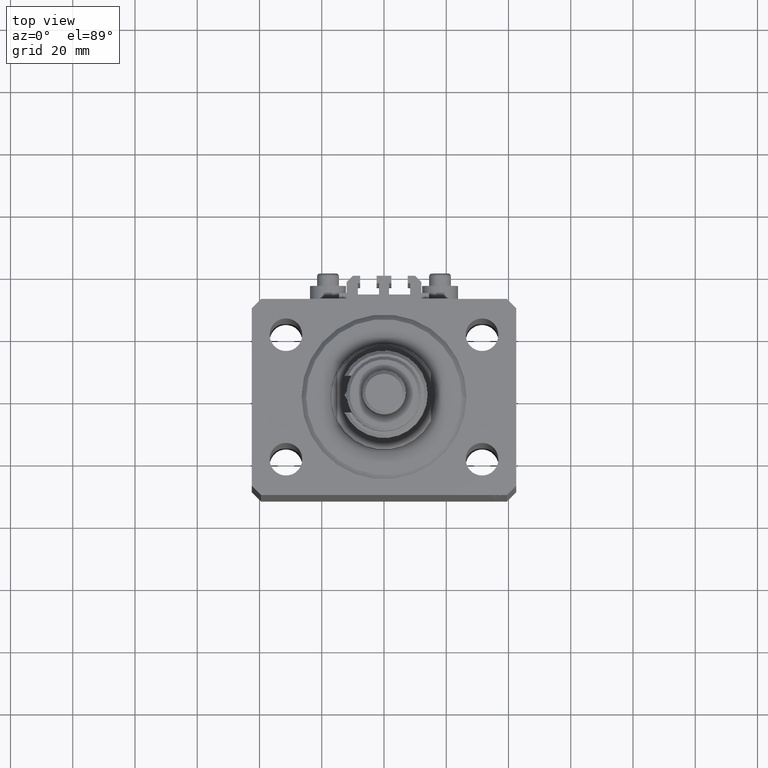
[diagram: clean part render]
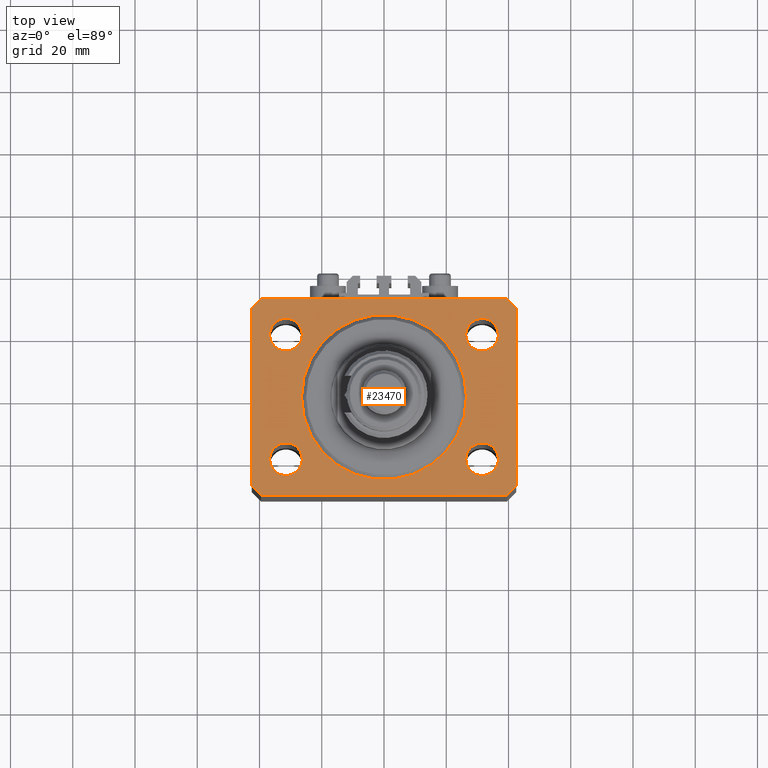
[diagram: same view with one face highlighted and labeled with its STEP entity id]
A machine part, top view. The second image highlights one B-rep face of the part: STEP entity #23470.
In plain terms, the highlighted planar face has unit normal (0, 0, 1).
Its self-contained STEP definition (entity closure, byte-faithful):
#446 = DIRECTION ( 'NONE',  ( 1.000000000000000000, 0.000000000000000000, -0.000000000000000000 ) ) ;
#685 = CARTESIAN_POINT ( 'NONE',  ( -39.50000000000000711, 31.50000000000000000, 0.000000000000000000 ) ) ;
#851 = EDGE_CURVE ( 'NONE', #24171, #5303, #35388, .T. ) ;
#905 = DIRECTION ( 'NONE',  ( 0.000000000000000000, 0.000000000000000000, 1.000000000000000000 ) ) ;
#1351 = DIRECTION ( 'NONE',  ( 0.000000000000000000, 0.000000000000000000, 1.000000000000000000 ) ) ;
#1599 = DIRECTION ( 'NONE',  ( 1.000000000000000000, 0.000000000000000000, 0.000000000000000000 ) ) ;
#2837 = ORIENTED_EDGE ( 'NONE', *, *, #11412, .F. ) ;
#3210 = VECTOR ( 'NONE', #23293, 1000.000000000000000 ) ;
#3241 = VERTEX_POINT ( 'NONE', #6510 ) ;
#3363 = VECTOR ( 'NONE', #16165, 1000.000000000000000 ) ;
#3405 = CARTESIAN_POINT ( 'NONE',  ( 42.50000000000000711, -28.50000000000000355, 0.000000000000000000 ) ) ;
#3412 = CARTESIAN_POINT ( 'NONE',  ( 42.50000000000051870, 28.49999999999995381, 0.000000000000000000 ) ) ;
#3523 = FACE_BOUND ( 'NONE', #23110, .T. ) ;
#3918 = ORIENTED_EDGE ( 'NONE', *, *, #24347, .F. ) ;
#4094 = DIRECTION ( 'NONE',  ( 1.000000000000000000, 0.000000000000000000, 0.000000000000000000 ) ) ;
#4255 = FACE_OUTER_BOUND ( 'NONE', #36804, .T. ) ;
#4389 = ORIENTED_EDGE ( 'NONE', *, *, #24379, .F. ) ;
#4404 = CARTESIAN_POINT ( 'NONE',  ( -39.50000000000000711, -31.50000000000000000, 0.000000000000000000 ) ) ;
#4546 = ORIENTED_EDGE ( 'NONE', *, *, #8628, .T. ) ;
#4745 = CIRCLE ( 'NONE', #12031, 5.250000000000000888 ) ;
#5132 = DIRECTION ( 'NONE',  ( 1.000000000000000000, 0.000000000000000000, 0.000000000000000000 ) ) ;
#5303 = VERTEX_POINT ( 'NONE', #45616 ) ;
#5593 = DIRECTION ( 'NONE',  ( 0.7071067811865471286, -0.7071067811865479058, 0.000000000000000000 ) ) ;
#6475 = CARTESIAN_POINT ( 'NONE',  ( -36.74999999999999289, -20.00000000000000355, 0.000000000000000000 ) ) ;
#6510 = CARTESIAN_POINT ( 'NONE',  ( -39.50000000000000711, -31.50000000000000000, 0.000000000000000000 ) ) ;
#6849 = CARTESIAN_POINT ( 'NONE',  ( 31.50000000000000000, 19.99999999999999289, 0.000000000000000000 ) ) ;
#7069 = CARTESIAN_POINT ( 'NONE',  ( 39.50000000000056843, 31.50000000000000000, 0.000000000000000000 ) ) ;
#7414 = EDGE_CURVE ( 'NONE', #13220, #16782, #17744, .T. ) ;
#7718 = CARTESIAN_POINT ( 'NONE',  ( 26.24999999999999645, -20.00000000000000355, 0.000000000000000000 ) ) ;
#7723 = VECTOR ( 'NONE', #22417, 1000.000000000000000 ) ;
#8003 = DIRECTION ( 'NONE',  ( 0.7071067811865483499, 0.7071067811865466846, 0.000000000000000000 ) ) ;
#8080 = FACE_BOUND ( 'NONE', #38780, .T. ) ;
#8186 = ORIENTED_EDGE ( 'NONE', *, *, #851, .F. ) ;
#8628 = EDGE_CURVE ( 'NONE', #33279, #13220, #15913, .T. ) ;
#8708 = CARTESIAN_POINT ( 'NONE',  ( -31.49999999999999289, -20.00000000000000355, 0.000000000000000000 ) ) ;
#8817 = CIRCLE ( 'NONE', #16936, 5.249999999999997335 ) ;
#8857 = DIRECTION ( 'NONE',  ( 1.000000000000000000, 0.000000000000000000, 0.000000000000000000 ) ) ;
#8968 = CIRCLE ( 'NONE', #33269, 5.250000000000000888 ) ;
#9214 = DIRECTION ( 'NONE',  ( 1.000000000000000000, 0.000000000000000000, 0.000000000000000000 ) ) ;
#9953 = ORIENTED_EDGE ( 'NONE', *, *, #36379, .T. ) ;
#9988 = CARTESIAN_POINT ( 'NONE',  ( -31.50000000000000000, 19.99999999999999645, 0.000000000000000000 ) ) ;
#10355 = AXIS2_PLACEMENT_3D ( 'NONE', #8708, #24196, #9214 ) ;
#10358 = EDGE_LOOP ( 'NONE', ( #2837, #40441 ) ) ;
#10785 = EDGE_CURVE ( 'NONE', #37390, #40683, #8968, .T. ) ;
#10899 = CARTESIAN_POINT ( 'NONE',  ( 39.50000000000056843, 31.50000000000000000, 0.000000000000000000 ) ) ;
#10996 = EDGE_CURVE ( 'NONE', #16782, #3241, #13718, .T. ) ;
#11247 = ORIENTED_EDGE ( 'NONE', *, *, #10785, .F. ) ;
#11316 = ORIENTED_EDGE ( 'NONE', *, *, #27670, .T. ) ;
#11412 = EDGE_CURVE ( 'NONE', #33171, #19442, #22779, .T. ) ;
#11640 = FACE_BOUND ( 'NONE', #10358, .T. ) ;
#11822 = DIRECTION ( 'NONE',  ( 1.000000000000000000, 0.000000000000000000, 0.000000000000000000 ) ) ;
#12031 = AXIS2_PLACEMENT_3D ( 'NONE', #9988, #24706, #24461 ) ;
#12145 = ORIENTED_EDGE ( 'NONE', *, *, #13868, .T. ) ;
#12366 = VERTEX_POINT ( 'NONE', #49658 ) ;
#12628 = VERTEX_POINT ( 'NONE', #41500 ) ;
#13054 = AXIS2_PLACEMENT_3D ( 'NONE', #27556, #905, #11822 ) ;
#13220 = VERTEX_POINT ( 'NONE', #31234 ) ;
#13718 = LINE ( 'NONE', #17776, #22740 ) ;
#13800 = ORIENTED_EDGE ( 'NONE', *, *, #26799, .F. ) ;
#13864 = VECTOR ( 'NONE', #28636, 1000.000000000000000 ) ;
#13868 = EDGE_CURVE ( 'NONE', #25638, #35839, #17778, .T. ) ;
#14741 = ORIENTED_EDGE ( 'NONE', *, *, #22885, .F. ) ;
#14743 = CARTESIAN_POINT ( 'NONE',  ( 26.25000000000000355, 19.99999999999999289, 0.000000000000000000 ) ) ;
#15246 = CIRCLE ( 'NONE', #18456, 5.249999999999997335 ) ;
#15469 = ORIENTED_EDGE ( 'NONE', *, *, #10996, .T. ) ;
#15758 = EDGE_CURVE ( 'NONE', #19442, #33171, #23741, .T. ) ;
#15913 = LINE ( 'NONE', #685, #3363 ) ;
#16165 = DIRECTION ( 'NONE',  ( -0.7071067811865471286, -0.7071067811865479058, 0.000000000000000000 ) ) ;
#16782 = VERTEX_POINT ( 'NONE', #27099 ) ;
#16805 = AXIS2_PLACEMENT_3D ( 'NONE', #39606, #27689, #38856 ) ;
#16936 = AXIS2_PLACEMENT_3D ( 'NONE', #44494, #1351, #20625 ) ;
#17559 = CIRCLE ( 'NONE', #44277, 5.250000000000000888 ) ;
#17744 = LINE ( 'NONE', #36753, #13864 ) ;
#17776 = CARTESIAN_POINT ( 'NONE',  ( -42.50000000000000000, -28.50000000000000000, 0.000000000000000000 ) ) ;
#17778 = LINE ( 'NONE', #44922, #31751 ) ;
#18456 = AXIS2_PLACEMENT_3D ( 'NONE', #6849, #29935, #1599 ) ;
#19070 = CARTESIAN_POINT ( 'NONE',  ( -26.25000000000000000, 19.99999999999999645, 0.000000000000000000 ) ) ;
#19251 = DIRECTION ( 'NONE',  ( 0.000000000000000000, 0.000000000000000000, 1.000000000000000000 ) ) ;
#19442 = VERTEX_POINT ( 'NONE', #28869 ) ;
#19722 = PLANE ( 'NONE',  #24064 ) ;
#20625 = DIRECTION ( 'NONE',  ( 1.000000000000000000, 0.000000000000000000, 0.000000000000000000 ) ) ;
#21841 = DIRECTION ( 'NONE',  ( -0.7071067811865356934, 0.7071067811865594521, 0.000000000000000000 ) ) ;
#22417 = DIRECTION ( 'NONE',  ( 8.886653596232072440E-15, 1.000000000000000000, 0.000000000000000000 ) ) ;
#22740 = VECTOR ( 'NONE', #5593, 1000.000000000000000 ) ;
#22779 = CIRCLE ( 'NONE', #13054, 26.50000000000000355 ) ;
#22885 = EDGE_CURVE ( 'NONE', #12366, #41869, #17559, .T. ) ;
#23110 = EDGE_LOOP ( 'NONE', ( #13800, #8186 ) ) ;
#23164 = CARTESIAN_POINT ( 'NONE',  ( -26.24999999999999289, -20.00000000000000355, 0.000000000000000000 ) ) ;
#23293 = DIRECTION ( 'NONE',  ( -1.000000000000000000, 0.000000000000000000, 0.000000000000000000 ) ) ;
#23470 = ADVANCED_FACE ( 'NONE', ( #11640, #49938, #3523, #42826, #8080, #4255 ), #19722, .T. ) ;
#23680 = CARTESIAN_POINT ( 'NONE',  ( -31.50000000000000000, 19.99999999999999645, 0.000000000000000000 ) ) ;
#23741 = CIRCLE ( 'NONE', #47223, 26.50000000000000355 ) ;
#24064 = AXIS2_PLACEMENT_3D ( 'NONE', #34460, #19251, #446 ) ;
#24171 = VERTEX_POINT ( 'NONE', #7718 ) ;
#24196 = DIRECTION ( 'NONE',  ( 0.000000000000000000, 0.000000000000000000, 1.000000000000000000 ) ) ;
#24347 = EDGE_CURVE ( 'NONE', #40683, #37390, #32199, .T. ) ;
#24379 = EDGE_CURVE ( 'NONE', #12628, #48020, #15246, .T. ) ;
#24461 = DIRECTION ( 'NONE',  ( 1.000000000000000000, 0.000000000000000000, 0.000000000000000000 ) ) ;
#24706 = DIRECTION ( 'NONE',  ( 0.000000000000000000, 0.000000000000000000, 1.000000000000000000 ) ) ;
#24886 = ORIENTED_EDGE ( 'NONE', *, *, #32404, .T. ) ;
#25638 = VERTEX_POINT ( 'NONE', #3412 ) ;
#25741 = ORIENTED_EDGE ( 'NONE', *, *, #26781, .F. ) ;
#26116 = CARTESIAN_POINT ( 'NONE',  ( 31.49999999999999289, -20.00000000000000355, 0.000000000000000000 ) ) ;
#26781 = EDGE_CURVE ( 'NONE', #41869, #12366, #4745, .T. ) ;
#26799 = EDGE_CURVE ( 'NONE', #5303, #24171, #8817, .T. ) ;
#27099 = CARTESIAN_POINT ( 'NONE',  ( -42.50000000000000000, -28.50000000000000000, 0.000000000000000000 ) ) ;
#27556 = CARTESIAN_POINT ( 'NONE',  ( 0.000000000000000000, 0.000000000000000000, 0.000000000000000000 ) ) ;
#27670 = EDGE_CURVE ( 'NONE', #3241, #49405, #42007, .T. ) ;
#27689 = DIRECTION ( 'NONE',  ( 0.000000000000000000, 0.000000000000000000, 1.000000000000000000 ) ) ;
#28006 = VECTOR ( 'NONE', #8003, 1000.000000000000000 ) ;
#28636 = DIRECTION ( 'NONE',  ( 0.000000000000000000, -1.000000000000000000, 0.000000000000000000 ) ) ;
#28736 = EDGE_CURVE ( 'NONE', #35839, #33279, #41819, .T. ) ;
#28869 = CARTESIAN_POINT ( 'NONE',  ( -26.50000000000000355, 3.245314017740485765E-15, 0.000000000000000000 ) ) ;
#29264 = LINE ( 'NONE', #37609, #7723 ) ;
#29338 = CARTESIAN_POINT ( 'NONE',  ( 39.50000000000000711, -31.50000000000000000, 0.000000000000000000 ) ) ;
#29923 = EDGE_LOOP ( 'NONE', ( #4389, #34331 ) ) ;
#29935 = DIRECTION ( 'NONE',  ( 0.000000000000000000, 0.000000000000000000, 1.000000000000000000 ) ) ;
#30235 = VERTEX_POINT ( 'NONE', #3405 ) ;
#30378 = DIRECTION ( 'NONE',  ( 0.000000000000000000, 0.000000000000000000, 1.000000000000000000 ) ) ;
#30638 = EDGE_LOOP ( 'NONE', ( #11247, #3918 ) ) ;
#31234 = CARTESIAN_POINT ( 'NONE',  ( -42.50000000000000000, 28.50000000000000000, 0.000000000000000000 ) ) ;
#31298 = DIRECTION ( 'NONE',  ( 1.000000000000000000, 0.000000000000000000, 0.000000000000000000 ) ) ;
#31751 = VECTOR ( 'NONE', #21841, 1000.000000000000114 ) ;
#32199 = CIRCLE ( 'NONE', #10355, 5.250000000000000888 ) ;
#32404 = EDGE_CURVE ( 'NONE', #49405, #30235, #46546, .T. ) ;
#33171 = VERTEX_POINT ( 'NONE', #47630 ) ;
#33269 = AXIS2_PLACEMENT_3D ( 'NONE', #41925, #42900, #4094 ) ;
#33279 = VERTEX_POINT ( 'NONE', #44066 ) ;
#34331 = ORIENTED_EDGE ( 'NONE', *, *, #47905, .F. ) ;
#34460 = CARTESIAN_POINT ( 'NONE',  ( 0.000000000000000000, 0.000000000000000000, 0.000000000000000000 ) ) ;
#35388 = CIRCLE ( 'NONE', #45981, 5.249999999999997335 ) ;
#35839 = VERTEX_POINT ( 'NONE', #10899 ) ;
#36379 = EDGE_CURVE ( 'NONE', #30235, #25638, #29264, .T. ) ;
#36753 = CARTESIAN_POINT ( 'NONE',  ( -42.50000000000000000, 28.50000000000000000, 0.000000000000000000 ) ) ;
#36804 = EDGE_LOOP ( 'NONE', ( #38099, #4546, #44669, #15469, #11316, #24886, #9953, #12145 ) ) ;
#37390 = VERTEX_POINT ( 'NONE', #23164 ) ;
#37609 = CARTESIAN_POINT ( 'NONE',  ( 42.50000000000000711, -28.50000000000000355, 0.000000000000000000 ) ) ;
#38099 = ORIENTED_EDGE ( 'NONE', *, *, #28736, .T. ) ;
#38671 = CIRCLE ( 'NONE', #16805, 5.249999999999997335 ) ;
#38780 = EDGE_LOOP ( 'NONE', ( #25741, #14741 ) ) ;
#38798 = CARTESIAN_POINT ( 'NONE',  ( 0.000000000000000000, 0.000000000000000000, 0.000000000000000000 ) ) ;
#38856 = DIRECTION ( 'NONE',  ( 1.000000000000000000, 0.000000000000000000, 0.000000000000000000 ) ) ;
#39128 = DIRECTION ( 'NONE',  ( 0.000000000000000000, 0.000000000000000000, 1.000000000000000000 ) ) ;
#39606 = CARTESIAN_POINT ( 'NONE',  ( 31.50000000000000000, 19.99999999999999289, 0.000000000000000000 ) ) ;
#40441 = ORIENTED_EDGE ( 'NONE', *, *, #15758, .F. ) ;
#40683 = VERTEX_POINT ( 'NONE', #6475 ) ;
#41278 = VECTOR ( 'NONE', #31298, 1000.000000000000000 ) ;
#41500 = CARTESIAN_POINT ( 'NONE',  ( 36.75000000000000000, 19.99999999999999289, 0.000000000000000000 ) ) ;
#41819 = LINE ( 'NONE', #7069, #3210 ) ;
#41869 = VERTEX_POINT ( 'NONE', #19070 ) ;
#41925 = CARTESIAN_POINT ( 'NONE',  ( -31.49999999999999289, -20.00000000000000355, 0.000000000000000000 ) ) ;
#42007 = LINE ( 'NONE', #4404, #41278 ) ;
#42748 = CARTESIAN_POINT ( 'NONE',  ( 39.50000000000000711, -31.50000000000000000, 0.000000000000000000 ) ) ;
#42826 = FACE_BOUND ( 'NONE', #29923, .T. ) ;
#42900 = DIRECTION ( 'NONE',  ( 0.000000000000000000, 0.000000000000000000, 1.000000000000000000 ) ) ;
#44066 = CARTESIAN_POINT ( 'NONE',  ( -39.50000000000000711, 31.50000000000000000, 0.000000000000000000 ) ) ;
#44277 = AXIS2_PLACEMENT_3D ( 'NONE', #23680, #39128, #5132 ) ;
#44494 = CARTESIAN_POINT ( 'NONE',  ( 31.49999999999999289, -20.00000000000000355, 0.000000000000000000 ) ) ;
#44669 = ORIENTED_EDGE ( 'NONE', *, *, #7414, .T. ) ;
#44922 = CARTESIAN_POINT ( 'NONE',  ( 42.50000000000051870, 28.49999999999995381, 0.000000000000000000 ) ) ;
#45616 = CARTESIAN_POINT ( 'NONE',  ( 36.74999999999999289, -20.00000000000000355, 0.000000000000000000 ) ) ;
#45981 = AXIS2_PLACEMENT_3D ( 'NONE', #26116, #30378, #49673 ) ;
#46546 = LINE ( 'NONE', #42748, #28006 ) ;
#47223 = AXIS2_PLACEMENT_3D ( 'NONE', #38798, #49239, #8857 ) ;
#47630 = CARTESIAN_POINT ( 'NONE',  ( 26.50000000000000355, 0.000000000000000000, 0.000000000000000000 ) ) ;
#47905 = EDGE_CURVE ( 'NONE', #48020, #12628, #38671, .T. ) ;
#48020 = VERTEX_POINT ( 'NONE', #14743 ) ;
#49239 = DIRECTION ( 'NONE',  ( 0.000000000000000000, 0.000000000000000000, 1.000000000000000000 ) ) ;
#49405 = VERTEX_POINT ( 'NONE', #29338 ) ;
#49658 = CARTESIAN_POINT ( 'NONE',  ( -36.75000000000000000, 19.99999999999999645, 0.000000000000000000 ) ) ;
#49673 = DIRECTION ( 'NONE',  ( 1.000000000000000000, 0.000000000000000000, 0.000000000000000000 ) ) ;
#49938 = FACE_BOUND ( 'NONE', #30638, .T. ) ;